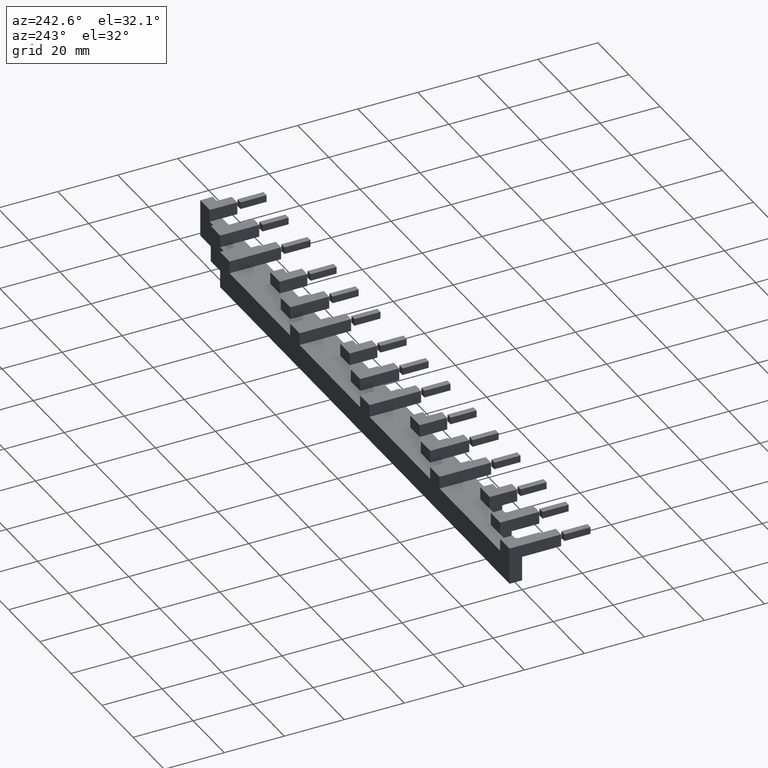
[diagram: clean part render]
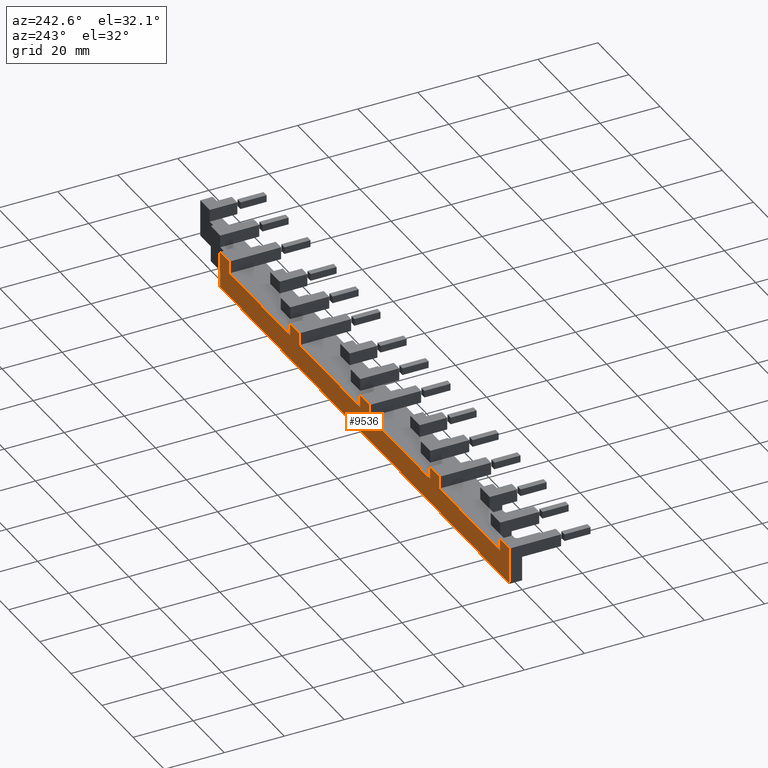
[diagram: same view with one face highlighted and labeled with its STEP entity id]
A machine part, auxiliary view. The second image highlights one B-rep face of the part: STEP entity #9536.
In plain terms, the highlighted planar face has unit normal (0, 1, 0).
Its self-contained STEP definition (entity closure, byte-faithful):
#5688=CARTESIAN_POINT('',(180.00000000000006,4.200000000008985,103.99999999999103));
#5689=VERTEX_POINT('',#5688);
#5696=CARTESIAN_POINT('',(141.09999999999974,4.200000000008715,103.99999999999132));
#5697=VERTEX_POINT('',#5696);
#5698=CARTESIAN_POINT('',(180.00000000000006,4.200000000008981,103.99999999999103));
#5699=DIRECTION('',(-1.0,0.0,0.0));
#5700=VECTOR('',#5699,38.900000000000318);
#5701=LINE('',#5698,#5700);
#5702=EDGE_CURVE('',#5689,#5697,#5701,.T.);
#5785=CARTESIAN_POINT('',(135.00000000000006,4.200000000008687,103.99999999999136));
#5786=VERTEX_POINT('',#5785);
#5793=CARTESIAN_POINT('',(96.099999999999724,4.200000000008417,103.9999999999916));
#5794=VERTEX_POINT('',#5793);
#5795=CARTESIAN_POINT('',(135.00000000000006,4.200000000008683,103.99999999999135));
#5796=DIRECTION('',(-1.0,0.0,0.0));
#5797=VECTOR('',#5796,38.900000000000318);
#5798=LINE('',#5795,#5797);
#5799=EDGE_CURVE('',#5786,#5794,#5798,.T.);
#5996=CARTESIAN_POINT('',(90.000000000000057,4.200000000008388,103.99999999999167));
#5997=VERTEX_POINT('',#5996);
#6004=CARTESIAN_POINT('',(51.09999999999971,4.200000000008118,103.99999999999193));
#6005=VERTEX_POINT('',#6004);
#6006=CARTESIAN_POINT('',(90.000000000000057,4.200000000008384,103.99999999999164));
#6007=DIRECTION('',(-1.0,0.0,0.0));
#6008=VECTOR('',#6007,38.90000000000034);
#6009=LINE('',#6006,#6008);
#6010=EDGE_CURVE('',#5997,#6005,#6009,.T.);
#6085=CARTESIAN_POINT('',(45.000000000000036,4.20000000000809,103.99999999999196));
#6086=VERTEX_POINT('',#6085);
#6093=CARTESIAN_POINT('',(6.099999999999697,4.20000000000782,103.99999999999224));
#6094=VERTEX_POINT('',#6093);
#6095=CARTESIAN_POINT('',(45.000000000000043,4.200000000008085,103.99999999999196));
#6096=DIRECTION('',(-1.0,0.0,0.0));
#6097=VECTOR('',#6096,38.900000000000333);
#6098=LINE('',#6095,#6097);
#6099=EDGE_CURVE('',#6086,#6094,#6098,.T.);
#6188=CARTESIAN_POINT('',(-2.790245E-014,4.200000000007777,95.799999999992252));
#6189=VERTEX_POINT('',#6188);
#6196=CARTESIAN_POINT('',(186.09999999999957,4.200000000009013,95.799999999991002));
#6197=VERTEX_POINT('',#6196);
#6198=CARTESIAN_POINT('',(-2.842171E-014,4.200000000007774,95.799999999992266));
#6199=DIRECTION('',(1.0,0.0,0.0));
#6200=VECTOR('',#6199,186.0999999999996);
#6201=LINE('',#6198,#6200);
#6202=EDGE_CURVE('',#6189,#6197,#6201,.T.);
#6384=CARTESIAN_POINT('',(5.569036E-014,4.200000000007791,108.09999999999226));
#6385=VERTEX_POINT('',#6384);
#6392=CARTESIAN_POINT('',(-2.790245E-014,4.200000000007791,95.799999999992252));
#6393=DIRECTION('',(0.0,0.0,1.0));
#6394=VECTOR('',#6393,12.299999999999997);
#6395=LINE('',#6392,#6394);
#6396=EDGE_CURVE('',#6189,#6385,#6395,.T.);
#6415=CARTESIAN_POINT('',(6.099999999999724,4.20000000000782,108.09999999999222));
#6416=VERTEX_POINT('',#6415);
#6432=CARTESIAN_POINT('',(6.099999999999697,4.20000000000782,103.99999999999224));
#6433=DIRECTION('',(0.0,0.0,1.0));
#6434=VECTOR('',#6433,4.099999999999994);
#6435=LINE('',#6432,#6434);
#6436=EDGE_CURVE('',#6094,#6416,#6435,.T.);
#6531=CARTESIAN_POINT('',(5.506706E-014,4.200000000007793,108.09999999999226));
#6532=DIRECTION('',(1.0,0.0,0.0));
#6533=VECTOR('',#6532,6.099999999999669);
#6534=LINE('',#6531,#6533);
#6535=EDGE_CURVE('',#6385,#6416,#6534,.T.);
#7094=CARTESIAN_POINT('',(90.000000000000071,4.200000000008388,108.09999999999165));
#7095=VERTEX_POINT('',#7094);
#7102=CARTESIAN_POINT('',(90.000000000000057,4.200000000008388,103.99999999999167));
#7103=DIRECTION('',(0.0,0.0,1.0));
#7104=VECTOR('',#7103,4.099999999999994);
#7105=LINE('',#7102,#7104);
#7106=EDGE_CURVE('',#5997,#7095,#7105,.T.);
#7124=CARTESIAN_POINT('',(96.099999999999767,4.200000000008417,108.09999999999161));
#7125=VERTEX_POINT('',#7124);
#7141=CARTESIAN_POINT('',(96.099999999999724,4.200000000008417,103.9999999999916));
#7142=DIRECTION('',(0.0,0.0,1.0));
#7143=VECTOR('',#7142,4.099999999999994);
#7144=LINE('',#7141,#7143);
#7145=EDGE_CURVE('',#5794,#7125,#7144,.T.);
#7238=CARTESIAN_POINT('',(90.000000000000085,4.20000000000839,108.09999999999165));
#7239=DIRECTION('',(1.0,0.0,0.0));
#7240=VECTOR('',#7239,6.099999999999682);
#7241=LINE('',#7238,#7240);
#7242=EDGE_CURVE('',#7095,#7125,#7241,.T.);
#7789=CARTESIAN_POINT('',(180.00000000000011,4.200000000008985,108.09999999999104));
#7790=VERTEX_POINT('',#7789);
#7797=CARTESIAN_POINT('',(180.00000000000006,4.200000000008985,103.99999999999103));
#7798=DIRECTION('',(0.0,0.0,1.0));
#7799=VECTOR('',#7798,4.099999999999994);
#7800=LINE('',#7797,#7799);
#7801=EDGE_CURVE('',#5689,#7790,#7800,.T.);
#7819=CARTESIAN_POINT('',(186.0999999999998,4.200000000009013,108.099999999991));
#7820=VERTEX_POINT('',#7819);
#7843=CARTESIAN_POINT('',(186.09999999999968,4.200000000009013,95.799999999991016));
#7844=DIRECTION('',(0.0,0.0,1.0));
#7845=VECTOR('',#7844,12.299999999999997);
#7846=LINE('',#7843,#7845);
#7847=EDGE_CURVE('',#6197,#7820,#7846,.T.);
#7940=CARTESIAN_POINT('',(180.00000000000011,4.200000000008987,108.09999999999104));
#7941=DIRECTION('',(1.0,0.0,0.0));
#7942=VECTOR('',#7941,6.099999999999682);
#7943=LINE('',#7940,#7942);
#7944=EDGE_CURVE('',#7790,#7820,#7943,.T.);
#8686=CARTESIAN_POINT('',(135.00000000000009,4.200000000008687,108.09999999999135));
#8687=VERTEX_POINT('',#8686);
#8694=CARTESIAN_POINT('',(135.00000000000006,4.200000000008687,103.99999999999136));
#8695=DIRECTION('',(0.0,0.0,1.0));
#8696=VECTOR('',#8695,4.099999999999994);
#8697=LINE('',#8694,#8696);
#8698=EDGE_CURVE('',#5786,#8687,#8697,.T.);
#8716=CARTESIAN_POINT('',(141.09999999999977,4.200000000008715,108.0999999999913));
#8717=VERTEX_POINT('',#8716);
#8733=CARTESIAN_POINT('',(141.09999999999974,4.200000000008715,103.99999999999132));
#8734=DIRECTION('',(0.0,0.0,1.0));
#8735=VECTOR('',#8734,4.099999999999994);
#8736=LINE('',#8733,#8735);
#8737=EDGE_CURVE('',#5697,#8717,#8736,.T.);
#8830=CARTESIAN_POINT('',(135.00000000000009,4.200000000008688,108.09999999999134));
#8831=DIRECTION('',(1.0,0.0,0.0));
#8832=VECTOR('',#8831,6.099999999999682);
#8833=LINE('',#8830,#8832);
#8834=EDGE_CURVE('',#8687,#8717,#8833,.T.);
#9472=CARTESIAN_POINT('',(45.000000000000064,4.20000000000809,108.09999999999195));
#9473=VERTEX_POINT('',#9472);
#9480=CARTESIAN_POINT('',(45.000000000000036,4.20000000000809,103.99999999999196));
#9481=DIRECTION('',(0.0,0.0,1.0));
#9482=VECTOR('',#9481,4.099999999999994);
#9483=LINE('',#9480,#9482);
#9484=EDGE_CURVE('',#6086,#9473,#9483,.T.);
#9497=CARTESIAN_POINT('',(45.000000000000036,4.20000000000809,103.99999999999196));
#9498=DIRECTION('',(0.0,1.0,0.0));
#9499=DIRECTION('',(0.0,0.0,1.0));
#9500=AXIS2_PLACEMENT_3D('',#9497,#9498,#9499);
#9501=PLANE('',#9500);
#9502=CARTESIAN_POINT('',(51.099999999999739,4.200000000008118,108.09999999999192));
#9503=VERTEX_POINT('',#9502);
#9504=CARTESIAN_POINT('',(45.000000000000071,4.200000000008092,108.09999999999197));
#9505=DIRECTION('',(1.0,0.0,0.0));
#9506=VECTOR('',#9505,6.099999999999668);
#9507=LINE('',#9504,#9506);
#9508=EDGE_CURVE('',#9473,#9503,#9507,.T.);
#9509=ORIENTED_EDGE('',*,*,#9508,.T.);
#9510=CARTESIAN_POINT('',(51.09999999999971,4.200000000008118,103.99999999999193));
#9511=DIRECTION('',(0.0,0.0,1.0));
#9512=VECTOR('',#9511,4.099999999999994);
#9513=LINE('',#9510,#9512);
#9514=EDGE_CURVE('',#6005,#9503,#9513,.T.);
#9515=ORIENTED_EDGE('',*,*,#9514,.F.);
#9516=ORIENTED_EDGE('',*,*,#6010,.F.);
#9517=ORIENTED_EDGE('',*,*,#7106,.T.);
#9518=ORIENTED_EDGE('',*,*,#7242,.T.);
#9519=ORIENTED_EDGE('',*,*,#7145,.F.);
#9520=ORIENTED_EDGE('',*,*,#5799,.F.);
#9521=ORIENTED_EDGE('',*,*,#8698,.T.);
#9522=ORIENTED_EDGE('',*,*,#8834,.T.);
#9523=ORIENTED_EDGE('',*,*,#8737,.F.);
#9524=ORIENTED_EDGE('',*,*,#5702,.F.);
#9525=ORIENTED_EDGE('',*,*,#7801,.T.);
#9526=ORIENTED_EDGE('',*,*,#7944,.T.);
#9527=ORIENTED_EDGE('',*,*,#7847,.F.);
#9528=ORIENTED_EDGE('',*,*,#6202,.F.);
#9529=ORIENTED_EDGE('',*,*,#6396,.T.);
#9530=ORIENTED_EDGE('',*,*,#6535,.T.);
#9531=ORIENTED_EDGE('',*,*,#6436,.F.);
#9532=ORIENTED_EDGE('',*,*,#6099,.F.);
#9533=ORIENTED_EDGE('',*,*,#9484,.T.);
#9534=EDGE_LOOP('',(#9509,#9515,#9516,#9517,#9518,#9519,#9520,#9521,#9522,#9523,#9524,#9525,#9526,#9527,#9528,#9529,#9530,#9531,#9532,#9533));
#9535=FACE_OUTER_BOUND('',#9534,.T.);
#9536=ADVANCED_FACE('',(#9535),#9501,.T.);